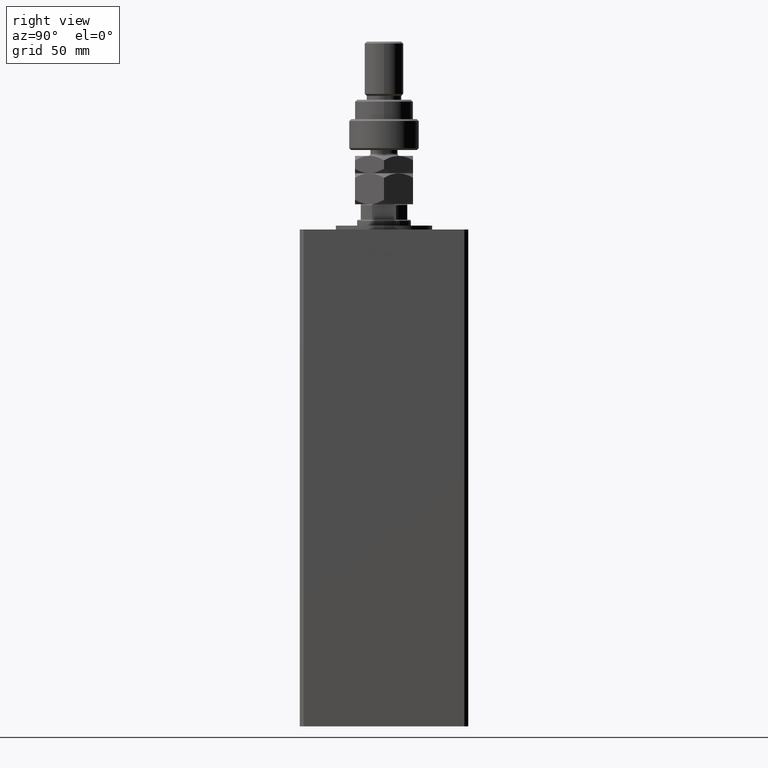
[diagram: clean part render]
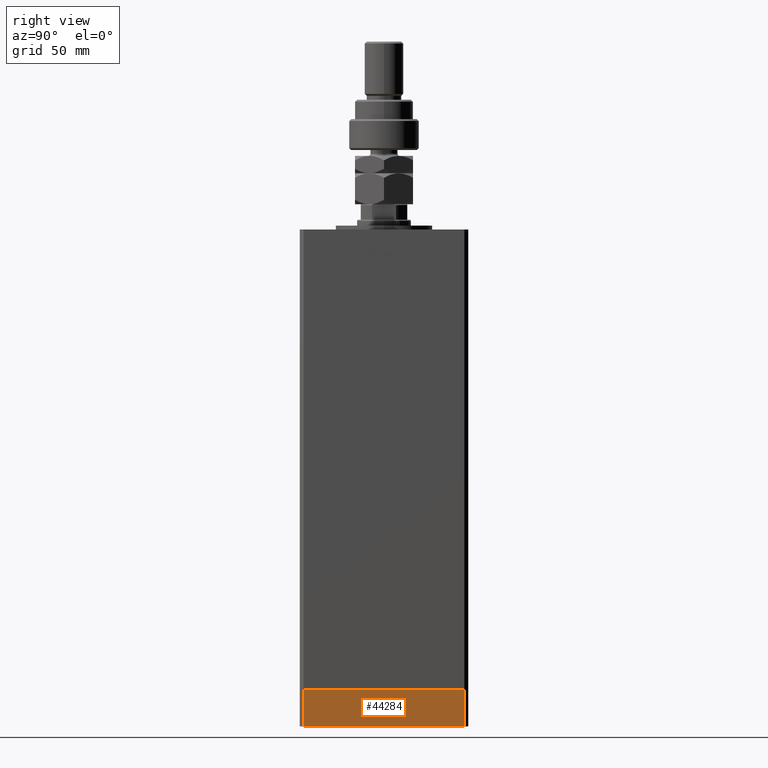
[diagram: same view with one face highlighted and labeled with its STEP entity id]
A machine part, right view. The second image highlights one B-rep face of the part: STEP entity #44284.
In plain terms, the highlighted planar face has unit normal (1, -0, 0).
Its self-contained STEP definition (entity closure, byte-faithful):
#1398 = VECTOR ( 'NONE', #36001, 1000.000000000000000 ) ;
#1784 = DIRECTION ( 'NONE',  ( -1.000000000000000000, -8.360113137237628665E-17, 0.000000000000000000 ) ) ;
#1848 = ORIENTED_EDGE ( 'NONE', *, *, #16600, .T. ) ;
#5952 = CARTESIAN_POINT ( 'NONE',  ( -50.00000000000000711, 41.49999999999995026, -19.00000000000000000 ) ) ;
#6133 = LINE ( 'NONE', #18672, #9710 ) ;
#6660 = CARTESIAN_POINT ( 'NONE',  ( -50.00000000000000000, -41.50000000000000000, -19.00000000000000000 ) ) ;
#9710 = VECTOR ( 'NONE', #36191, 1000.000000000000000 ) ;
#13475 = CARTESIAN_POINT ( 'NONE',  ( -50.00000000000000711, 41.49999999999995026, 0.000000000000000000 ) ) ;
#14573 = LINE ( 'NONE', #48789, #1398 ) ;
#16600 = EDGE_CURVE ( 'NONE', #49235, #35731, #6133, .T. ) ;
#18672 = CARTESIAN_POINT ( 'NONE',  ( -50.00000000000000711, 41.49999999999995026, -19.00000000000000000 ) ) ;
#19316 = DIRECTION ( 'NONE',  ( 8.360113137237628665E-17, -1.000000000000000000, 0.000000000000000000 ) ) ;
#19804 = LINE ( 'NONE', #20351, #25209 ) ;
#20351 = CARTESIAN_POINT ( 'NONE',  ( -50.00000000000000711, 41.49999999999995026, -19.00000000000000000 ) ) ;
#25209 = VECTOR ( 'NONE', #36770, 1000.000000000000000 ) ;
#26360 = AXIS2_PLACEMENT_3D ( 'NONE', #5952, #1784, #19316 ) ;
#26803 = ORIENTED_EDGE ( 'NONE', *, *, #55026, .T. ) ;
#27854 = CARTESIAN_POINT ( 'NONE',  ( -50.00000000000000000, -41.50000000000000000, 0.000000000000000000 ) ) ;
#27931 = FACE_OUTER_BOUND ( 'NONE', #52263, .T. ) ;
#28212 = EDGE_CURVE ( 'NONE', #38234, #52028, #51579, .T. ) ;
#30309 = CARTESIAN_POINT ( 'NONE',  ( -50.00000000000000711, 41.49999999999995026, -19.00000000000000000 ) ) ;
#30506 = ORIENTED_EDGE ( 'NONE', *, *, #35530, .F. ) ;
#35530 = EDGE_CURVE ( 'NONE', #49235, #38234, #19804, .T. ) ;
#35731 = VERTEX_POINT ( 'NONE', #6660 ) ;
#36001 = DIRECTION ( 'NONE',  ( 0.000000000000000000, 0.000000000000000000, 1.000000000000000000 ) ) ;
#36191 = DIRECTION ( 'NONE',  ( 8.360113137237628665E-17, -1.000000000000000000, 0.000000000000000000 ) ) ;
#36770 = DIRECTION ( 'NONE',  ( 0.000000000000000000, 0.000000000000000000, 1.000000000000000000 ) ) ;
#38234 = VERTEX_POINT ( 'NONE', #54211 ) ;
#39355 = DIRECTION ( 'NONE',  ( 8.360113137237628665E-17, -1.000000000000000000, 0.000000000000000000 ) ) ;
#40716 = PLANE ( 'NONE',  #26360 ) ;
#44284 = ADVANCED_FACE ( 'NONE', ( #27931 ), #40716, .T. ) ;
#44659 = VECTOR ( 'NONE', #39355, 1000.000000000000000 ) ;
#48789 = CARTESIAN_POINT ( 'NONE',  ( -50.00000000000000000, -41.50000000000000000, -19.00000000000000000 ) ) ;
#49235 = VERTEX_POINT ( 'NONE', #30309 ) ;
#51004 = ORIENTED_EDGE ( 'NONE', *, *, #28212, .F. ) ;
#51579 = LINE ( 'NONE', #13475, #44659 ) ;
#52028 = VERTEX_POINT ( 'NONE', #27854 ) ;
#52263 = EDGE_LOOP ( 'NONE', ( #51004, #30506, #1848, #26803 ) ) ;
#54211 = CARTESIAN_POINT ( 'NONE',  ( -50.00000000000000711, 41.49999999999995026, 0.000000000000000000 ) ) ;
#55026 = EDGE_CURVE ( 'NONE', #35731, #52028, #14573, .T. ) ;